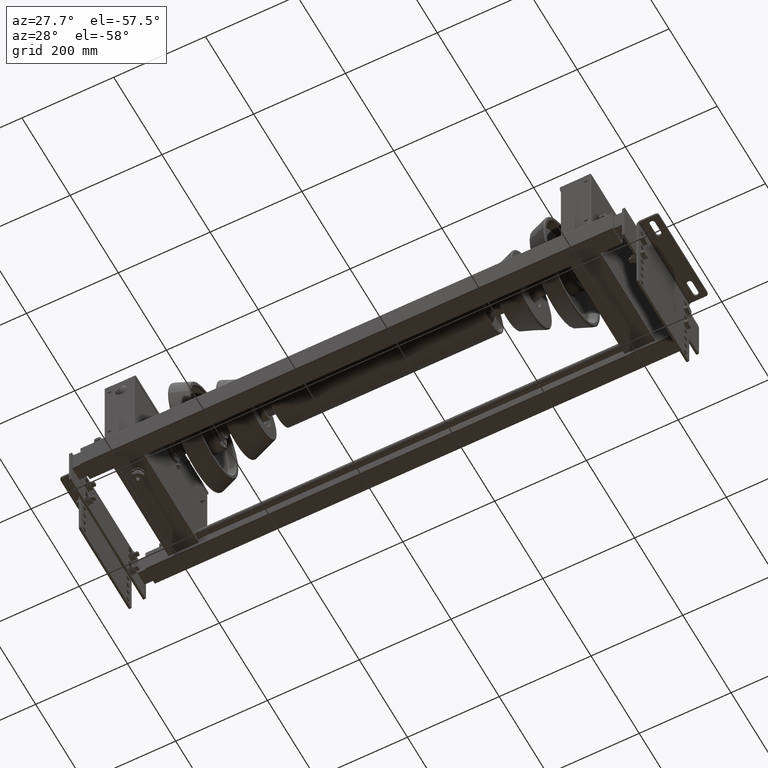
[diagram: clean part render]
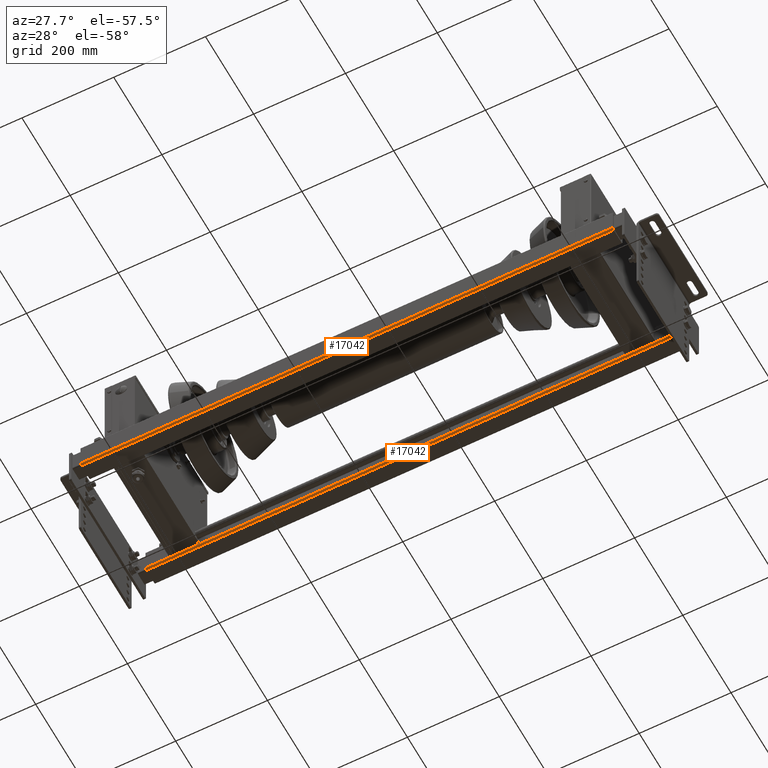
[diagram: same view with one multi-face feature highlighted, each face labeled with its STEP entity id]
A machine part, auxiliary view. The highlighted faces form ONE feature: a constant-radius fillet chain: 2 tangent blend faces with common blend radius 4 mm. The faces share edges in the B-rep.
Their STEP definitions:
[1] entity #17042 (Cylinder):
#16984=CARTESIAN_POINT('',(-16.0,-29.999999999999886,755.0));
#16985=VERTEX_POINT('',#16984);
#16992=CARTESIAN_POINT('',(-16.0,-29.999999999999886,-405.0));
#16993=VERTEX_POINT('',#16992);
#16994=CARTESIAN_POINT('',(-16.0,-29.999999999999886,-405.0));
#16995=DIRECTION('',(0.0,0.0,1.0));
#16996=VECTOR('',#16995,1160.0);
#16997=LINE('',#16994,#16996);
#16998=EDGE_CURVE('',#16993,#16985,#16997,.T.);
#17010=CARTESIAN_POINT('',(-16.0,-25.999999999999886,-405.0));
#17011=DIRECTION('',(0.0,0.0,1.0));
#17012=DIRECTION('',(1.0,0.0,0.0));
#17013=AXIS2_PLACEMENT_3D('',#17010,#17011,#17012);
#17014=CYLINDRICAL_SURFACE('',#17013,4.0);
#17015=CARTESIAN_POINT('',(-20.0,-25.999999999999886,755.0));
#17016=VERTEX_POINT('',#17015);
#17017=CARTESIAN_POINT('',(-16.0,-25.999999999999886,755.0));
#17018=DIRECTION('',(0.0,0.0,-1.0));
#17019=DIRECTION('',(1.0,0.0,0.0));
#17020=AXIS2_PLACEMENT_3D('',#17017,#17018,#17019);
#17021=CIRCLE('',#17020,4.0);
#17022=EDGE_CURVE('',#16985,#17016,#17021,.T.);
#17023=ORIENTED_EDGE('',*,*,#17022,.T.);
#17024=CARTESIAN_POINT('',(-20.0,-25.999999999999886,-405.0));
#17025=VERTEX_POINT('',#17024);
#17026=CARTESIAN_POINT('',(-20.0,-25.999999999999886,-405.0));
#17027=DIRECTION('',(0.0,0.0,1.0));
#17028=VECTOR('',#17027,1160.0);
#17029=LINE('',#17026,#17028);
#17030=EDGE_CURVE('',#17025,#17016,#17029,.T.);
#17031=ORIENTED_EDGE('',*,*,#17030,.F.);
#17032=CARTESIAN_POINT('',(-16.0,-25.999999999999886,-405.0));
#17033=DIRECTION('',(0.0,0.0,-1.0));
#17034=DIRECTION('',(1.0,0.0,0.0));
#17035=AXIS2_PLACEMENT_3D('',#17032,#17033,#17034);
#17036=CIRCLE('',#17035,4.0);
#17037=EDGE_CURVE('',#16993,#17025,#17036,.T.);
#17038=ORIENTED_EDGE('',*,*,#17037,.F.);
#17039=ORIENTED_EDGE('',*,*,#16998,.T.);
#17040=EDGE_LOOP('',(#17023,#17031,#17038,#17039));
#17041=FACE_OUTER_BOUND('',#17040,.T.);
#17042=ADVANCED_FACE('',(#17041),#17014,.T.);
[2] entity #17042 (Cylinder):
#16984=CARTESIAN_POINT('',(-16.0,-29.999999999999886,755.0));
#16985=VERTEX_POINT('',#16984);
#16992=CARTESIAN_POINT('',(-16.0,-29.999999999999886,-405.0));
#16993=VERTEX_POINT('',#16992);
#16994=CARTESIAN_POINT('',(-16.0,-29.999999999999886,-405.0));
#16995=DIRECTION('',(0.0,0.0,1.0));
#16996=VECTOR('',#16995,1160.0);
#16997=LINE('',#16994,#16996);
#16998=EDGE_CURVE('',#16993,#16985,#16997,.T.);
#17010=CARTESIAN_POINT('',(-16.0,-25.999999999999886,-405.0));
#17011=DIRECTION('',(0.0,0.0,1.0));
#17012=DIRECTION('',(1.0,0.0,0.0));
#17013=AXIS2_PLACEMENT_3D('',#17010,#17011,#17012);
#17014=CYLINDRICAL_SURFACE('',#17013,4.0);
#17015=CARTESIAN_POINT('',(-20.0,-25.999999999999886,755.0));
#17016=VERTEX_POINT('',#17015);
#17017=CARTESIAN_POINT('',(-16.0,-25.999999999999886,755.0));
#17018=DIRECTION('',(0.0,0.0,-1.0));
#17019=DIRECTION('',(1.0,0.0,0.0));
#17020=AXIS2_PLACEMENT_3D('',#17017,#17018,#17019);
#17021=CIRCLE('',#17020,4.0);
#17022=EDGE_CURVE('',#16985,#17016,#17021,.T.);
#17023=ORIENTED_EDGE('',*,*,#17022,.T.);
#17024=CARTESIAN_POINT('',(-20.0,-25.999999999999886,-405.0));
#17025=VERTEX_POINT('',#17024);
#17026=CARTESIAN_POINT('',(-20.0,-25.999999999999886,-405.0));
#17027=DIRECTION('',(0.0,0.0,1.0));
#17028=VECTOR('',#17027,1160.0);
#17029=LINE('',#17026,#17028);
#17030=EDGE_CURVE('',#17025,#17016,#17029,.T.);
#17031=ORIENTED_EDGE('',*,*,#17030,.F.);
#17032=CARTESIAN_POINT('',(-16.0,-25.999999999999886,-405.0));
#17033=DIRECTION('',(0.0,0.0,-1.0));
#17034=DIRECTION('',(1.0,0.0,0.0));
#17035=AXIS2_PLACEMENT_3D('',#17032,#17033,#17034);
#17036=CIRCLE('',#17035,4.0);
#17037=EDGE_CURVE('',#16993,#17025,#17036,.T.);
#17038=ORIENTED_EDGE('',*,*,#17037,.F.);
#17039=ORIENTED_EDGE('',*,*,#16998,.T.);
#17040=EDGE_LOOP('',(#17023,#17031,#17038,#17039));
#17041=FACE_OUTER_BOUND('',#17040,.T.);
#17042=ADVANCED_FACE('',(#17041),#17014,.T.);